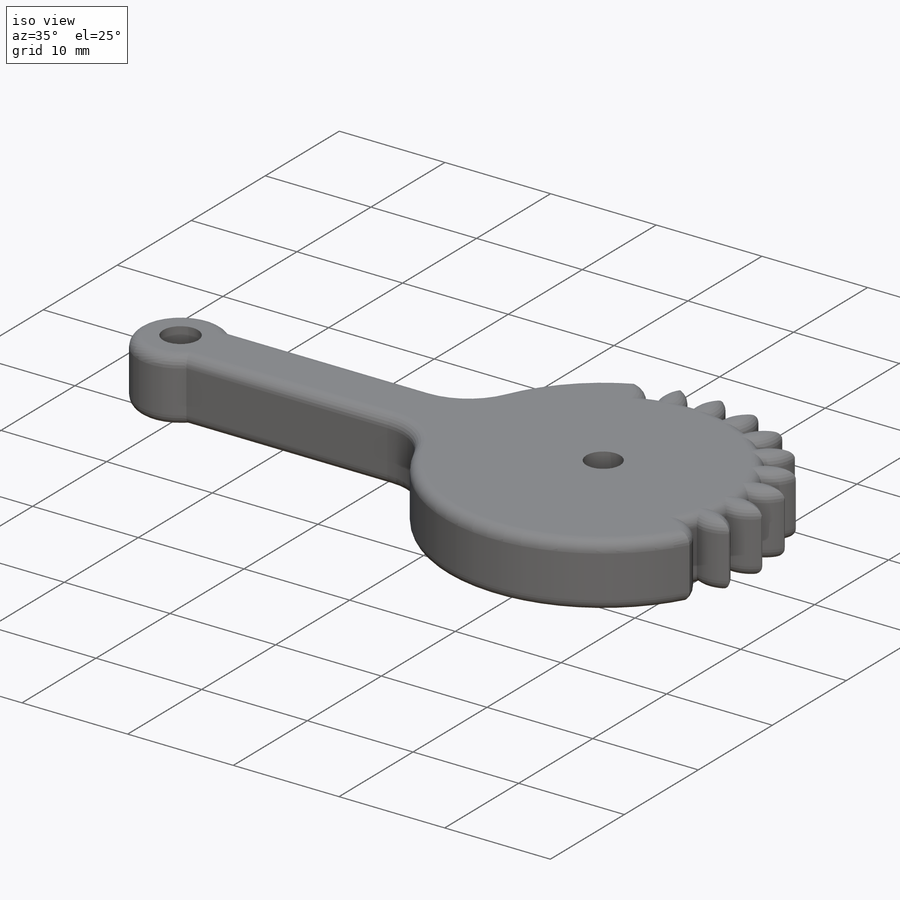
[diagram: iso view]
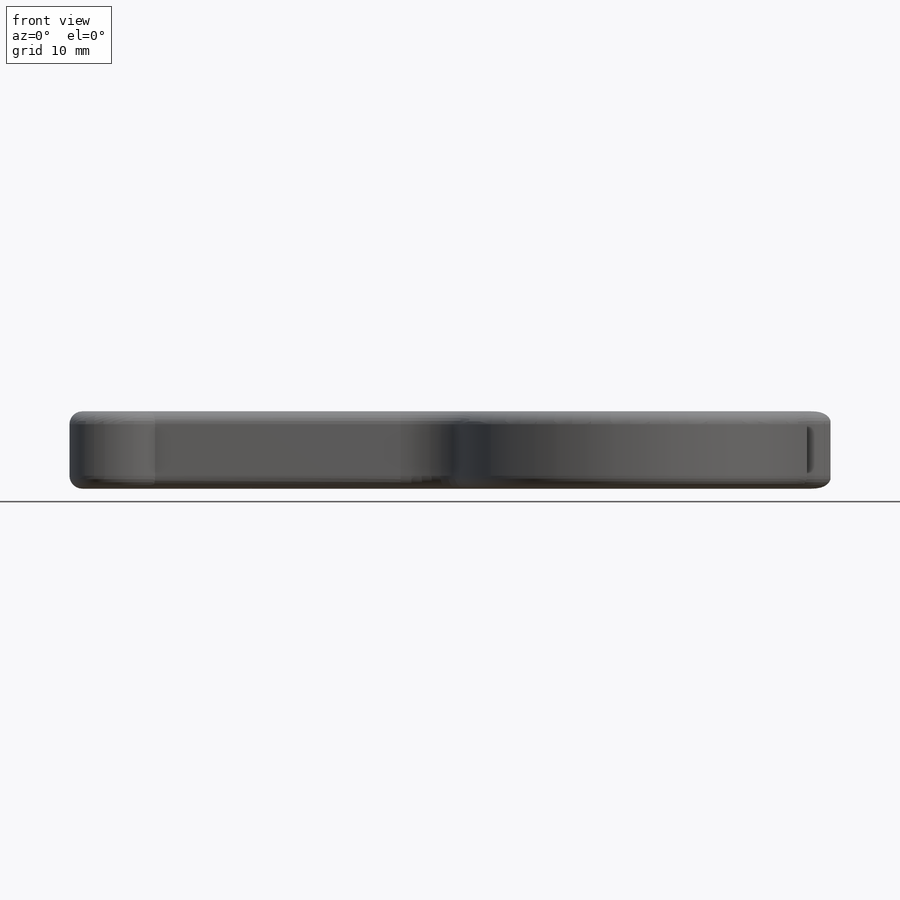
[diagram: front view]
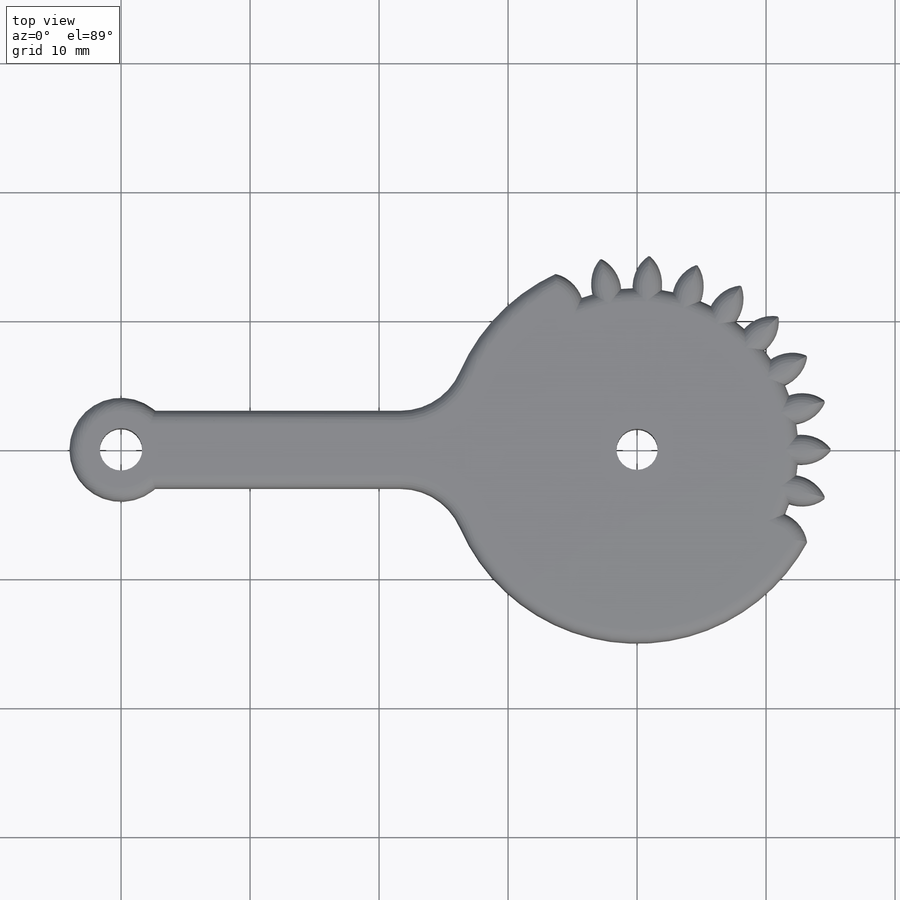
[diagram: top view]
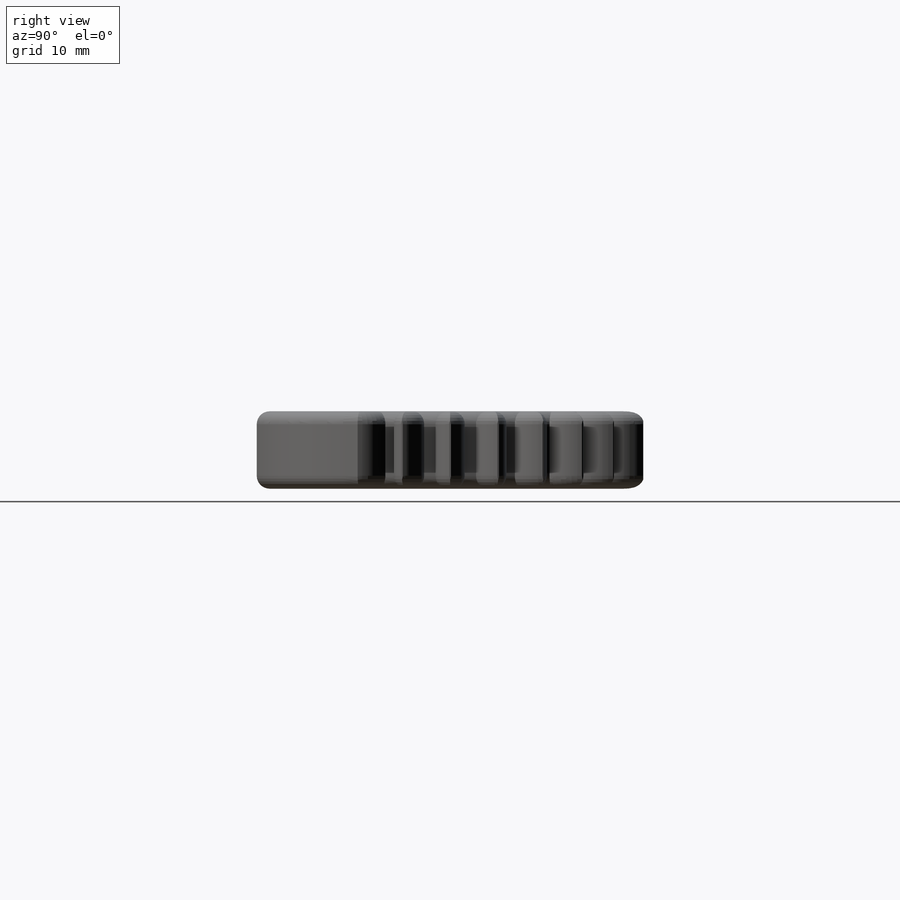
[diagram: right view]
SOLIDWORKS PART (.sldprt)
format: sldprt  version: not decoded by parser v0  size: 877,568 bytes
history: native  units: mm
features: fillet x4, plane x3, sketch x3, extrude x2, material x1, cut_extrude x1, pattern_circular x1 (+9 scaffold rows collapsed)
feature tree (24):
  scaffold x9  (default folders/planes/origin — collapsed)
  material  "Material <sin especificar>"
  plane  "Alzado"
  plane  "Planta"
  plane  "Vista lateral"
  sketch  "Croquis1"  dims[D1=8.0mm D2=3.3mm D4=30.0mm D5=25.0mm D6=3.2mm D3=40.0mm D7=6.0mm]
  extrude  "Saliente-Extruir1"  Depth=6mm
  sketch  "Croquis2"  dims[c1.D1=30.1mm c1.D2=25.0mm c1.D4=25.0mm c1.D3=1.12mm c2.D4=0.9mm c2.D5=0.5mm c2.D6=0.5mm c2.D7=0.5mm c2.D8=0.5mm c2.D9=0.5mm c2.D10=0.65mm c2.D11=0.9mm c2.D12=1.3mm c2.D13=1.95mm]
  cut_extrude  "Cortar-Extruir1"  Depth=6mm
  pattern_circular  "MatrizC1"  Count=25 Angle=360deg
  sketch  "Croquis3"  dims[D1=24.5mm]
  extrude  "Saliente-Extruir2"  Depth=6mm
  fillet  "Redondeo1"  Radius=5mm
  fillet  "Redondeo2"  Radius=1mm
  fillet  "Redondeo8"  Radius=1mm
  fillet  "Redondeo9"  Radius=0.99mm
decode coverage: 11 of 11 modeling features carry decoded parameters
note: suppression state not decoded; provenance and decode notes live in map.json
